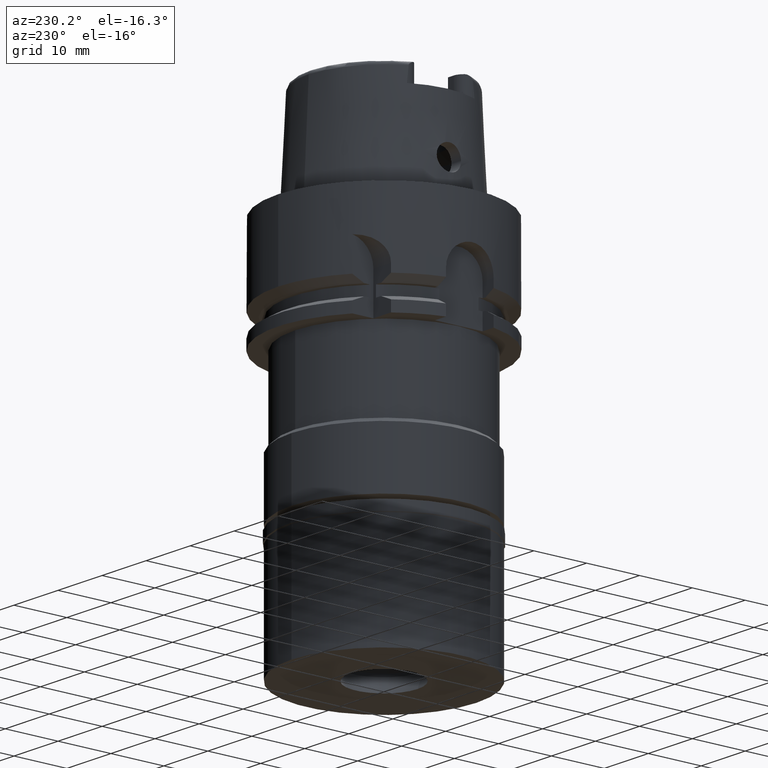
[diagram: clean part render]
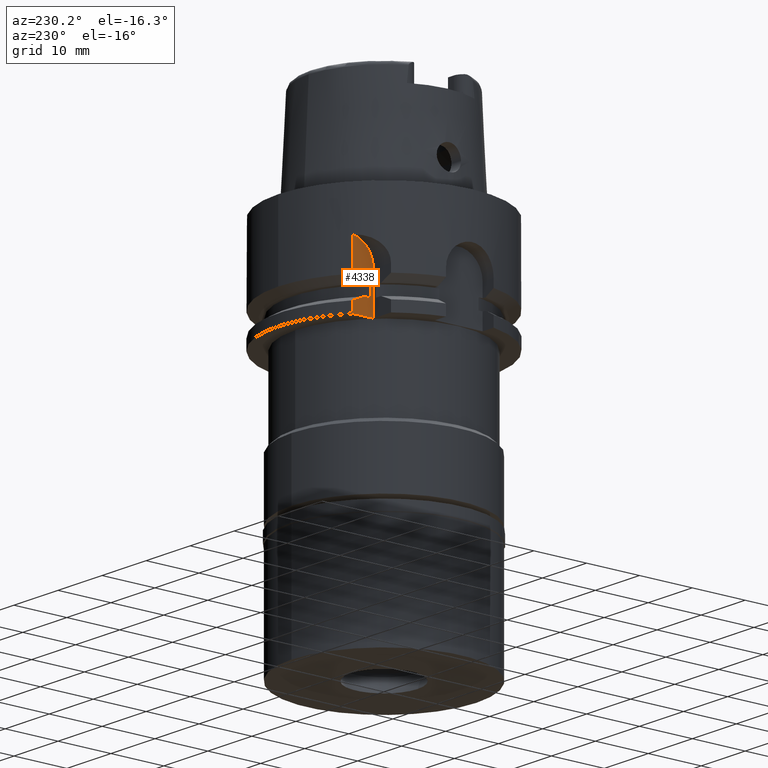
[diagram: same view with one face highlighted and labeled with its STEP entity id]
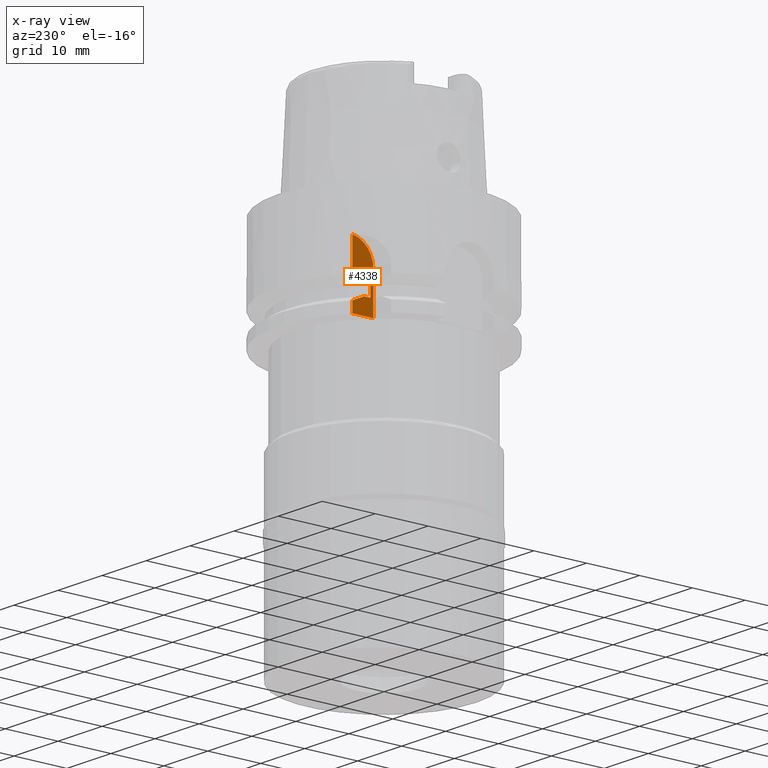
[diagram: x-ray of the same camera — body ghosted, the highlighted face saturated]
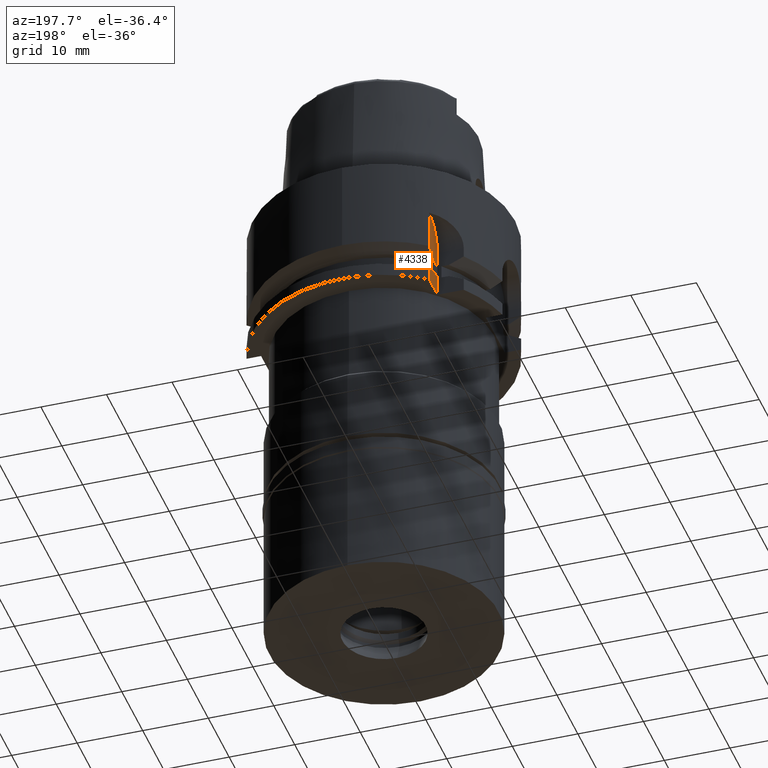
[diagram: same view with one face highlighted and labeled with its STEP entity id]
A machine part, auxiliary view. The second image highlights one B-rep face of the part: STEP entity #4338.
The next image is the same camera in x-ray: the body ghosted, the highlighted face saturated — about 0% of this face is hidden behind the body in this view.
A second angle (auxiliary view) of the same face is appended — the face is thin or edge-on in the first view.
In plain terms, the highlighted planar face has unit normal (1, 0, 0).
Its self-contained STEP definition (entity closure, byte-faithful):
#51 = CARTESIAN_POINT ( 'NONE',  ( -11.99999819327999973, 16.00000135504000198, -18.02071908005000367 ) ) ;
#57 = ORIENTED_EDGE ( 'NONE', *, *, #3275, .T. ) ;
#111 = ORIENTED_EDGE ( 'NONE', *, *, #935, .T. ) ;
#136 = VERTEX_POINT ( 'NONE', #5284 ) ;
#148 = DIRECTION ( 'NONE',  ( -9.128186884751450336E-07, -6.846133730905339457E-07, -0.9999999999993490762 ) ) ;
#342 = VECTOR ( 'NONE', #2963, 1000.000000000000000 ) ;
#354 = CARTESIAN_POINT ( 'NONE',  ( -12.00000000000000000, 16.00000000000000000, -8.000000000000000000 ) ) ;
#394 = EDGE_CURVE ( 'NONE', #2424, #4910, #3262, .T. ) ;
#477 = B_SPLINE_CURVE_WITH_KNOTS ( 'NONE', 3,
 ( #51, #1932, #5257, #4866 ),
 .UNSPECIFIED., .F., .F.,
 ( 4, 4 ),
 ( 0.0000000000000000000, 1.000000000000000000 ),
 .UNSPECIFIED. ) ;
#619 = ORIENTED_EDGE ( 'NONE', *, *, #1997, .F. ) ;
#645 = EDGE_CURVE ( 'NONE', #4715, #3441, #5139, .T. ) ;
#662 = CARTESIAN_POINT ( 'NONE',  ( -12.00000000000000000, 16.50000000000000000, -12.47213595500000061 ) ) ;
#719 = VERTEX_POINT ( 'NONE', #3625 ) ;
#912 = EDGE_CURVE ( 'NONE', #3794, #4635, #2626, .T. ) ;
#916 = CARTESIAN_POINT ( 'NONE',  ( -12.00000000000000000, 0.0000000000000000000, 0.0000000000000000000 ) ) ;
#935 = EDGE_CURVE ( 'NONE', #136, #2424, #3758, .T. ) ;
#1019 = DIRECTION ( 'NONE',  ( 0.0000000000000000000, 1.000000000000000000, 0.0000000000000000000 ) ) ;
#1124 = ORIENTED_EDGE ( 'NONE', *, *, #3811, .T. ) ;
#1329 = LINE ( 'NONE', #4301, #5372 ) ;
#1384 = VECTOR ( 'NONE', #3380, 999.9999999999998863 ) ;
#1463 = EDGE_CURVE ( 'NONE', #4715, #719, #1329, .T. ) ;
#1580 = DIRECTION ( 'NONE',  ( 0.0000000000000000000, -0.1111111111111011546, 0.9938079899999077149 ) ) ;
#1642 = DIRECTION ( 'NONE',  ( 7.653252313261109106E-06, 0.9999999999707138709, 3.044069884132039532E-13 ) ) ;
#1727 = CARTESIAN_POINT ( 'NONE',  ( -12.00000000000000000, 14.44846913502642671, -14.68607506152809350 ) ) ;
#1751 = AXIS2_PLACEMENT_3D ( 'NONE', #662, #5351, #1580 ) ;
#1787 = DIRECTION ( 'NONE',  ( 1.000000000000000000, 0.0000000000000000000, 0.0000000000000000000 ) ) ;
#1932 = CARTESIAN_POINT ( 'NONE',  ( -11.99999639444755672, 15.21253450628815962, -17.65700993054392143 ) ) ;
#1996 = VERTEX_POINT ( 'NONE', #4134 ) ;
#1997 = EDGE_CURVE ( 'NONE', #3455, #4910, #477, .T. ) ;
#2224 = DIRECTION ( 'NONE',  ( 0.0000000000000000000, 0.0000000000000000000, 1.000000000000000000 ) ) ;
#2248 = CARTESIAN_POINT ( 'NONE',  ( -11.99999138055999914, 13.72624507007000005, -15.00000000000000000 ) ) ;
#2424 = VERTEX_POINT ( 'NONE', #2558 ) ;
#2546 = CIRCLE ( 'NONE', #1751, 4.500000000000001776 ) ;
#2558 = CARTESIAN_POINT ( 'NONE',  ( -12.00000000000000000, 12.59999999999999964, -17.00000000000000000 ) ) ;
#2626 = B_SPLINE_CURVE_WITH_KNOTS ( 'NONE', 3,
 ( #5141, #2917, #1727, #4588 ),
 .UNSPECIFIED., .F., .F.,
 ( 4, 4 ),
 ( 0.0000000000000000000, 1.000000000000000000 ),
 .UNSPECIFIED. ) ;
#2775 = ORIENTED_EDGE ( 'NONE', *, *, #645, .T. ) ;
#2810 = VECTOR ( 'NONE', #4505, 1000.000000000000227 ) ;
#2876 = CARTESIAN_POINT ( 'NONE',  ( -12.00000000000000000, 12.00000000000000000, -20.00000000000000000 ) ) ;
#2917 = CARTESIAN_POINT ( 'NONE',  ( -12.00000000000000000, 15.20638789681309255, -14.34583536812809434 ) ) ;
#2963 = DIRECTION ( 'NONE',  ( 0.0000000000000000000, 0.0000000000000000000, -1.000000000000000000 ) ) ;
#3016 = LINE ( 'NONE', #5413, #3618 ) ;
#3035 = CARTESIAN_POINT ( 'NONE',  ( -11.99999819327999973, 16.00000135504000198, -18.02071908005000367 ) ) ;
#3059 = EDGE_CURVE ( 'NONE', #136, #4635, #3016, .T. ) ;
#3061 = AXIS2_PLACEMENT_3D ( 'NONE', #916, #1787, #5142 ) ;
#3197 = ORIENTED_EDGE ( 'NONE', *, *, #4873, .F. ) ;
#3262 = LINE ( 'NONE', #4953, #2810 ) ;
#3275 = EDGE_CURVE ( 'NONE', #3455, #719, #3474, .T. ) ;
#3306 = EDGE_LOOP ( 'NONE', ( #2775, #3197, #1124, #4035, #5292, #111, #3910, #619, #57, #4251 ) ) ;
#3333 = CARTESIAN_POINT ( 'NONE',  ( -11.99999819275999968, 16.00000135543000113, -13.97928091979999898 ) ) ;
#3380 = DIRECTION ( 'NONE',  ( 3.022506647591088857E-07, 2.266877838509064339E-07, -0.9999999999999287237 ) ) ;
#3441 = VERTEX_POINT ( 'NONE', #4328 ) ;
#3442 = VECTOR ( 'NONE', #148, 1000.000000000000000 ) ;
#3447 = CARTESIAN_POINT ( 'NONE',  ( -12.00000000000000000, 12.00000000000000000, -20.00000000000000000 ) ) ;
#3455 = VERTEX_POINT ( 'NONE', #3035 ) ;
#3474 = LINE ( 'NONE', #5167, #3442 ) ;
#3588 = VECTOR ( 'NONE', #2224, 1000.000000000000000 ) ;
#3618 = VECTOR ( 'NONE', #1642, 1000.000000000000114 ) ;
#3625 = CARTESIAN_POINT ( 'NONE',  ( -12.00000000000000000, 16.00000000000000000, -20.00000000000000000 ) ) ;
#3758 = LINE ( 'NONE', #5058, #342 ) ;
#3794 = VERTEX_POINT ( 'NONE', #3333 ) ;
#3806 = LINE ( 'NONE', #354, #1384 ) ;
#3811 = EDGE_CURVE ( 'NONE', #1996, #3794, #3806, .T. ) ;
#3910 = ORIENTED_EDGE ( 'NONE', *, *, #394, .T. ) ;
#4035 = ORIENTED_EDGE ( 'NONE', *, *, #912, .T. ) ;
#4134 = CARTESIAN_POINT ( 'NONE',  ( -12.00000000000000000, 16.00000000000000000, -8.000000000000000000 ) ) ;
#4206 = PLANE ( 'NONE',  #3061 ) ;
#4251 = ORIENTED_EDGE ( 'NONE', *, *, #1463, .F. ) ;
#4301 = CARTESIAN_POINT ( 'NONE',  ( -12.00000000000000000, 12.00000000000000000, -20.00000000000000000 ) ) ;
#4328 = CARTESIAN_POINT ( 'NONE',  ( -12.00000000000000000, 12.00000000000000000, -12.47213595500000061 ) ) ;
#4338 = ADVANCED_FACE ( 'NONE', ( #4690 ), #4206, .F. ) ;
#4505 = DIRECTION ( 'NONE',  ( 7.650997303452240371E-06, 0.9999999999707310794, -3.028297605917094702E-13 ) ) ;
#4588 = CARTESIAN_POINT ( 'NONE',  ( -11.99999138055999914, 13.72624507007000005, -15.00000000000000000 ) ) ;
#4635 = VERTEX_POINT ( 'NONE', #2248 ) ;
#4690 = FACE_OUTER_BOUND ( 'NONE', #3306, .T. ) ;
#4715 = VERTEX_POINT ( 'NONE', #2876 ) ;
#4735 = CARTESIAN_POINT ( 'NONE',  ( -11.99999138309999935, 13.72624503115999950, -17.00000000000000000 ) ) ;
#4866 = CARTESIAN_POINT ( 'NONE',  ( -11.99999138309999935, 13.72624503115999950, -17.00000000000000000 ) ) ;
#4873 = EDGE_CURVE ( 'NONE', #1996, #3441, #2546, .T. ) ;
#4910 = VERTEX_POINT ( 'NONE', #4735 ) ;
#4953 = CARTESIAN_POINT ( 'NONE',  ( -12.00000000000000000, 12.59999999999999964, -17.00000000000000000 ) ) ;
#5058 = CARTESIAN_POINT ( 'NONE',  ( -12.00000000000000000, 12.59999999999999964, -15.00000000000000000 ) ) ;
#5139 = LINE ( 'NONE', #3447, #3588 ) ;
#5141 = CARTESIAN_POINT ( 'NONE',  ( -11.99999819275999968, 16.00000135543000113, -13.97928091979999898 ) ) ;
#5142 = DIRECTION ( 'NONE',  ( 0.0000000000000000000, 1.000000000000000000, 0.0000000000000000000 ) ) ;
#5167 = CARTESIAN_POINT ( 'NONE',  ( -11.99999819327999973, 16.00000135504000198, -18.02071908005000367 ) ) ;
#5257 = CARTESIAN_POINT ( 'NONE',  ( -11.99998262259943616, 14.45496553786137106, -17.31677611851453946 ) ) ;
#5284 = CARTESIAN_POINT ( 'NONE',  ( -12.00000000000000000, 12.59999999999999964, -15.00000000000000000 ) ) ;
#5292 = ORIENTED_EDGE ( 'NONE', *, *, #3059, .F. ) ;
#5351 = DIRECTION ( 'NONE',  ( 1.000000000000000000, 0.0000000000000000000, 0.0000000000000000000 ) ) ;
#5372 = VECTOR ( 'NONE', #1019, 1000.000000000000000 ) ;
#5413 = CARTESIAN_POINT ( 'NONE',  ( -12.00000000000000000, 12.59999999999999964, -15.00000000000000000 ) ) ;